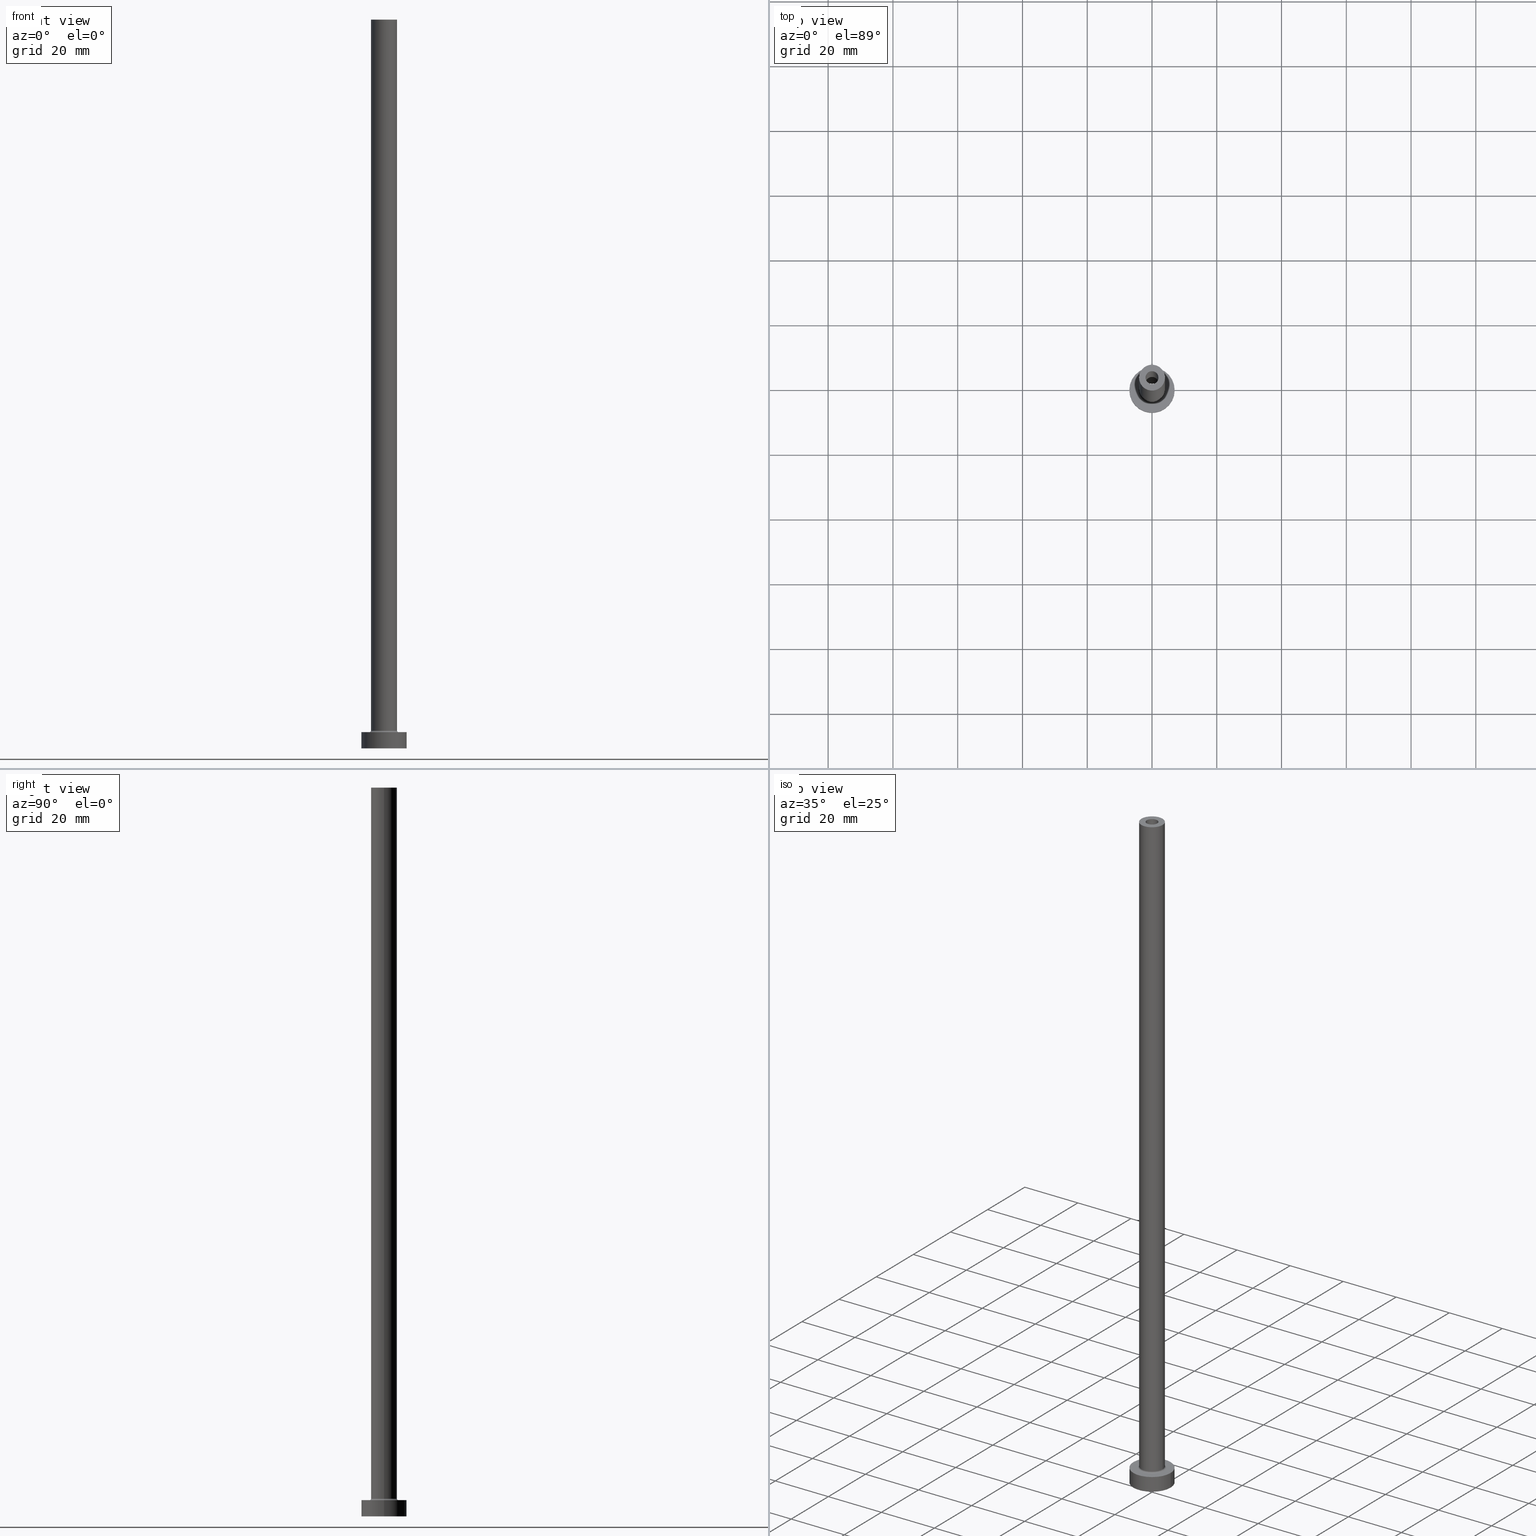
[diagram: canonical four-view strip — front | top / right | iso, engineering-drawing reading convention]
A machine part, canonical four-view strip (front | top / right | iso — engineering-drawing reading convention). The complete STEP part file that produces these views, byte-faithful:
ISO-10303-21;
HEADER;
FILE_DESCRIPTION (( 'STEP AP203' ),
    '1' );
FILE_NAME ('0907.STEP',
    '2023-02-13T17:38:49',
    ( '' ),
    ( '' ),
    'SwSTEP 2.0',
    'SolidWorks 2019',
    '' );
FILE_SCHEMA (( 'CONFIG_CONTROL_DESIGN' ));
ENDSEC;

DATA;
#1 = ORIENTED_EDGE ( 'NONE', *, *, #409, .F. ) ;
#2 = DIRECTION ( 'NONE',  ( 0.000000000000000000, 0.000000000000000000, 1.000000000000000000 ) ) ;
#3 = CARTESIAN_POINT ( 'NONE',  ( 4.500000000000000888, 0.000000000000000000, 5.500000000000005329 ) ) ;
#4 = AXIS2_PLACEMENT_3D ( 'NONE', #392, #72, #426 ) ;
#5 = DIRECTION ( 'NONE',  ( 1.000000000000000000, 0.000000000000000000, 0.000000000000000000 ) ) ;
#6 = CARTESIAN_POINT ( 'NONE',  ( 0.000000000000000000, 0.000000000000000000, 0.000000000000000000 ) ) ;
#7 = ORIENTED_EDGE ( 'NONE', *, *, #417, .F. ) ;
#8 = CARTESIAN_POINT ( 'NONE',  ( -2.149999999999999911, 0.000000000000000000, 180.0000000000000000 ) ) ;
#9 =( LENGTH_UNIT ( ) NAMED_UNIT ( * ) SI_UNIT ( .MILLI., .METRE. ) );
#10 = DIRECTION ( 'NONE',  ( 0.000000000000000000, 0.000000000000000000, 1.000000000000000000 ) ) ;
#11 = ADVANCED_FACE ( 'NONE', ( #149 ), #333, .T. ) ;
#12 = CARTESIAN_POINT ( 'NONE',  ( 0.000000000000000000, 0.000000000000000000, 225.0000000000000000 ) ) ;
#13 = AXIS2_PLACEMENT_3D ( 'NONE', #30, #33, #140 ) ;
#14 = APPROVAL ( #55, 'NEUR�EN�' ) ;
#15 = CARTESIAN_POINT ( 'NONE',  ( 7.000000000000000000, 8.572527594031473190E-16, 5.000000000000000000 ) ) ;
#16 = ORIENTED_EDGE ( 'NONE', *, *, #336, .T. ) ;
#17 = DIRECTION ( 'NONE',  ( 1.000000000000000000, 0.000000000000000000, 0.000000000000000000 ) ) ;
#18 = VERTEX_POINT ( 'NONE', #301 ) ;
#19 = CC_DESIGN_APPROVAL ( #54, ( #183 ) ) ;
#20 = CARTESIAN_POINT ( 'NONE',  ( -4.000000000000000000, 0.000000000000000000, 225.0000000000000000 ) ) ;
#21 = APPROVAL_STATUS ( 'not_yet_approved' ) ;
#22 = DIRECTION ( 'NONE',  ( -1.000000000000000000, 0.000000000000000000, 0.000000000000000000 ) ) ;
#23 = CARTESIAN_POINT ( 'NONE',  ( 2.149999999999999911, 2.632990618166809235E-16, 0.000000000000000000 ) ) ;
#24 = ORIENTED_EDGE ( 'NONE', *, *, #26, .F. ) ;
#25 = PERSON_AND_ORGANIZATION ( #52, #109 ) ;
#26 = EDGE_CURVE ( 'NONE', #243, #264, #311, .T. ) ;
#27 = DATE_AND_TIME ( #123, #147 ) ;
#28 = CC_DESIGN_PERSON_AND_ORGANIZATION_ASSIGNMENT ( #309, #446, ( #183 ) ) ;
#29 = AXIS2_PLACEMENT_3D ( 'NONE', #213, #456, #22 ) ;
#30 = CARTESIAN_POINT ( 'NONE',  ( 0.000000000000000000, 0.000000000000000000, 186.0811183182042896 ) ) ;
#31 = ORIENTED_EDGE ( 'NONE', *, *, #155, .F. ) ;
#32 = DIRECTION ( 'NONE',  ( -1.000000000000000000, 0.000000000000000000, 0.000000000000000000 ) ) ;
#33 = DIRECTION ( 'NONE',  ( 0.000000000000000000, 0.000000000000000000, -1.000000000000000000 ) ) ;
#34 = AXIS2_PLACEMENT_3D ( 'NONE', #150, #396, #357 ) ;
#35 = EDGE_LOOP ( 'NONE', ( #85, #418, #173, #180 ) ) ;
#36 = DIRECTION ( 'NONE',  ( 0.000000000000000000, 0.000000000000000000, -1.000000000000000000 ) ) ;
#37 = DIRECTION ( 'NONE',  ( 0.000000000000000000, 0.000000000000000000, -1.000000000000000000 ) ) ;
#38 = DIRECTION ( 'NONE',  ( 0.000000000000000000, 0.000000000000000000, 1.000000000000000000 ) ) ;
#39 = ORIENTED_EDGE ( 'NONE', *, *, #454, .T. ) ;
#40 = CARTESIAN_POINT ( 'NONE',  ( -4.500000000000000888, 5.510910596163088569E-16, 5.000000000000002665 ) ) ;
#41 = AXIS2_PLACEMENT_3D ( 'NONE', #133, #276, #435 ) ;
#42 = DIRECTION ( 'NONE',  ( 0.000000000000000000, 0.000000000000000000, 1.000000000000000000 ) ) ;
#43 = EDGE_CURVE ( 'NONE', #308, #359, #364, .T. ) ;
#44 = DIRECTION ( 'NONE',  ( -0.000000000000000000, -0.000000000000000000, -1.000000000000000000 ) ) ;
#45 = FACE_BOUND ( 'NONE', #337, .T. ) ;
#46 = CARTESIAN_POINT ( 'NONE',  ( 0.000000000000000000, 0.000000000000000000, 5.000000000000000000 ) ) ;
#47 = LINE ( 'NONE', #429, #355 ) ;
#48 = CIRCLE ( 'NONE', #34, 7.000000000000000000 ) ;
#49 = ORIENTED_EDGE ( 'NONE', *, *, #106, .T. ) ;
#50 = DIRECTION ( 'NONE',  ( -0.000000000000000000, -0.000000000000000000, -1.000000000000000000 ) ) ;
#51 = DIRECTION ( 'NONE',  ( 1.000000000000000000, 0.000000000000000000, 0.000000000000000000 ) ) ;
#52 = PERSON ( 'NEUR�EN�', 'NEUR�EN�', 'NEUR�EN�', ('NEUR�EN�'), ('NEUR�EN�'), ('NEUR�EN�') ) ;
#53 = ORIENTED_EDGE ( 'NONE', *, *, #190, .F. ) ;
#54 = APPROVAL ( #97, 'NEUR�EN�' ) ;
#55 = APPROVAL_STATUS ( 'not_yet_approved' ) ;
#56 = CARTESIAN_POINT ( 'NONE',  ( 4.000000000000000000, 4.898587196589412829E-16, 225.0000000000000000 ) ) ;
#57 = EDGE_LOOP ( 'NONE', ( #75, #137 ) ) ;
#58 = SECURITY_CLASSIFICATION_LEVEL ( 'unclassified' ) ;
#59 = VECTOR ( 'NONE', #37, 1000.000000000000000 ) ;
#60 = APPROVAL_PERSON_ORGANIZATION ( #372, #14, #416 ) ;
#61 = CARTESIAN_POINT ( 'NONE',  ( 0.000000000000000000, 0.000000000000000000, 0.000000000000000000 ) ) ;
#62 = ADVANCED_FACE ( 'NONE', ( #397, #335 ), #125, .F. ) ;
#63 = APPROVAL_ROLE ( '' ) ;
#64 = DIRECTION ( 'NONE',  ( -1.000000000000000000, 0.000000000000000000, 0.000000000000000000 ) ) ;
#65 = DIRECTION ( 'NONE',  ( 0.000000000000000000, 0.000000000000000000, 1.000000000000000000 ) ) ;
#66 = AXIS2_PLACEMENT_3D ( 'NONE', #406, #90, #127 ) ;
#67 = EDGE_LOOP ( 'NONE', ( #460, #191, #138, #135 ) ) ;
#68 = PRODUCT_DEFINITION ( 'NEZN�M�', '', #367, #461 ) ;
#69 = ORIENTED_EDGE ( 'NONE', *, *, #260, .T. ) ;
#70 = CARTESIAN_POINT ( 'NONE',  ( -2.000000000000000000, 0.000000000000000000, 225.0000000000000000 ) ) ;
#71 = ORIENTED_EDGE ( 'NONE', *, *, #160, .F. ) ;
#72 = DIRECTION ( 'NONE',  ( 0.000000000000000000, 0.000000000000000000, 1.000000000000000000 ) ) ;
#73 = AXIS2_PLACEMENT_3D ( 'NONE', #349, #412, #64 ) ;
#74 = EDGE_CURVE ( 'NONE', #264, #243, #146, .T. ) ;
#75 = ORIENTED_EDGE ( 'NONE', *, *, #454, .F. ) ;
#76 = EDGE_CURVE ( 'NONE', #91, #371, #302, .T. ) ;
#77 = EDGE_LOOP ( 'NONE', ( #7, #280 ) ) ;
#78 = DIRECTION ( 'NONE',  ( 1.000000000000000000, 0.000000000000000000, 0.000000000000000000 ) ) ;
#79 = DIRECTION ( 'NONE',  ( 0.000000000000000000, 0.000000000000000000, 1.000000000000000000 ) ) ;
#80 = EDGE_CURVE ( 'NONE', #354, #162, #420, .T. ) ;
#81 = CARTESIAN_POINT ( 'NONE',  ( 0.000000000000000000, 0.000000000000000000, 225.0000000000000000 ) ) ;
#82 = DIRECTION ( 'NONE',  ( 1.000000000000000000, 0.000000000000000000, 0.000000000000000000 ) ) ;
#83 = ORIENTED_EDGE ( 'NONE', *, *, #324, .T. ) ;
#84 = CARTESIAN_POINT ( 'NONE',  ( 7.000000000000000000, 8.572527594031473190E-16, 0.000000000000000000 ) ) ;
#85 = ORIENTED_EDGE ( 'NONE', *, *, #190, .T. ) ;
#86 = PLANE ( 'NONE',  #252 ) ;
#87 = FACE_OUTER_BOUND ( 'NONE', #314, .T. ) ;
#88 = ORIENTED_EDGE ( 'NONE', *, *, #76, .F. ) ;
#89 = CC_DESIGN_APPROVAL ( #277, ( #367 ) ) ;
#90 = DIRECTION ( 'NONE',  ( 0.000000000000000000, 0.000000000000000000, 1.000000000000000000 ) ) ;
#91 = VERTEX_POINT ( 'NONE', #222 ) ;
#92 = DIRECTION ( 'NONE',  ( 1.000000000000000000, 0.000000000000000000, 0.000000000000000000 ) ) ;
#93 = COORDINATED_UNIVERSAL_TIME_OFFSET ( 1, 0, .AHEAD. ) ;
#94 = ADVANCED_FACE ( 'NONE', ( #437, #87 ), #120, .T. ) ;
#95 = EDGE_CURVE ( 'NONE', #91, #215, #157, .T. ) ;
#96 = ORIENTED_EDGE ( 'NONE', *, *, #402, .F. ) ;
#97 = APPROVAL_STATUS ( 'not_yet_approved' ) ;
#98 = FACE_BOUND ( 'NONE', #166, .T. ) ;
#99 = VECTOR ( 'NONE', #118, 1000.000000000000000 ) ;
#100 = LINE ( 'NONE', #287, #210 ) ;
#101 = CARTESIAN_POINT ( 'NONE',  ( 0.000000000000000000, 0.000000000000000000, 0.000000000000000000 ) ) ;
#102 = AXIS2_PLACEMENT_3D ( 'NONE', #404, #79, #151 ) ;
#103 = CIRCLE ( 'NONE', #119, 7.000000000000000000 ) ;
#104 = DIRECTION ( 'NONE',  ( 1.000000000000000000, 0.000000000000000000, 0.000000000000000000 ) ) ;
#105 = ORIENTED_EDGE ( 'NONE', *, *, #76, .T. ) ;
#106 = EDGE_CURVE ( 'NONE', #371, #380, #300, .T. ) ;
#107 = CARTESIAN_POINT ( 'NONE',  ( 0.000000000000000000, 0.000000000000000000, 180.0000000000000000 ) ) ;
#108 = CARTESIAN_POINT ( 'NONE',  ( 0.000000000000000000, 0.000000000000000000, 225.0000000000000000 ) ) ;
#109 = ORGANIZATION ( 'NEUR�EN�', 'NEUR�EN�', '' ) ;
#110 = ORIENTED_EDGE ( 'NONE', *, *, #292, .F. ) ;
#111 = DIRECTION ( 'NONE',  ( 0.000000000000000000, 0.000000000000000000, 1.000000000000000000 ) ) ;
#112 = EDGE_CURVE ( 'NONE', #451, #354, #196, .T. ) ;
#113 = DIRECTION ( 'NONE',  ( -0.000000000000000000, -0.000000000000000000, -1.000000000000000000 ) ) ;
#114 = CARTESIAN_POINT ( 'NONE',  ( 2.149999999999999911, 2.632990618166809235E-16, 186.0811183182042896 ) ) ;
#115 = AXIS2_PLACEMENT_3D ( 'NONE', #81, #289, #430 ) ;
#116 = DIRECTION ( 'NONE',  ( -0.000000000000000000, -0.000000000000000000, -1.000000000000000000 ) ) ;
#117 = ORIENTED_EDGE ( 'NONE', *, *, #74, .T. ) ;
#118 = DIRECTION ( 'NONE',  ( 0.000000000000000000, 0.000000000000000000, -1.000000000000000000 ) ) ;
#119 = AXIS2_PLACEMENT_3D ( 'NONE', #449, #2, #200 ) ;
#120 = PLANE ( 'NONE',  #189 ) ;
#121 = ORIENTED_EDGE ( 'NONE', *, *, #341, .T. ) ;
#122 = EDGE_CURVE ( 'NONE', #425, #451, #455, .T. ) ;
#123 = CALENDAR_DATE ( 2023, 13, 2 ) ;
#124 = VECTOR ( 'NONE', #186, 1000.000000000000000 ) ;
#125 = PLANE ( 'NONE',  #374 ) ;
#126 = TOROIDAL_SURFACE ( 'NONE', #340, 4.500000000000000888, 0.5000000000000000000 ) ;
#127 = DIRECTION ( 'NONE',  ( 1.000000000000000000, 0.000000000000000000, 0.000000000000000000 ) ) ;
#128 = ORIENTED_EDGE ( 'NONE', *, *, #106, .F. ) ;
#129 = CALENDAR_DATE ( 2023, 13, 2 ) ;
#130 = EDGE_CURVE ( 'NONE', #371, #91, #48, .T. ) ;
#131 = CLOSED_SHELL ( 'NONE', ( #139, #259, #365, #11, #373, #342, #438, #389, #286, #94, #227, #310, #62, #245 ) ) ;
#132 = PERSON_AND_ORGANIZATION ( #52, #109 ) ;
#133 = CARTESIAN_POINT ( 'NONE',  ( 0.000000000000000000, 0.000000000000000000, 0.000000000000000000 ) ) ;
#134 = AXIS2_PLACEMENT_3D ( 'NONE', #108, #253, #315 ) ;
#135 = ORIENTED_EDGE ( 'NONE', *, *, #292, .T. ) ;
#136 = CC_DESIGN_PERSON_AND_ORGANIZATION_ASSIGNMENT ( #132, #346, ( #367 ) ) ;
#137 = ORIENTED_EDGE ( 'NONE', *, *, #423, .F. ) ;
#138 = ORIENTED_EDGE ( 'NONE', *, *, #160, .T. ) ;
#139 = ADVANCED_FACE ( 'NONE', ( #225 ), #321, .F. ) ;
#140 = DIRECTION ( 'NONE',  ( -1.000000000000000000, 0.000000000000000000, 0.000000000000000000 ) ) ;
#141 = ORIENTED_EDGE ( 'NONE', *, *, #95, .T. ) ;
#142 = CARTESIAN_POINT ( 'NONE',  ( -2.149999999999999911, 0.000000000000000000, 0.000000000000000000 ) ) ;
#143 = CC_DESIGN_PERSON_AND_ORGANIZATION_ASSIGNMENT ( #25, #307, ( #68 ) ) ;
#144 = VERTEX_POINT ( 'NONE', #40 ) ;
#145 = CARTESIAN_POINT ( 'NONE',  ( 2.000000000000000000, 2.449293598294706414E-16, 225.0000000000000000 ) ) ;
#146 = CIRCLE ( 'NONE', #405, 2.149999999999999911 ) ;
#147 = LOCAL_TIME ( 18, 38, 49.00000000000000000, #348 ) ;
#148 = DIRECTION ( 'NONE',  ( 0.000000000000000000, 0.000000000000000000, 1.000000000000000000 ) ) ;
#149 = FACE_OUTER_BOUND ( 'NONE', #263, .T. ) ;
#150 = CARTESIAN_POINT ( 'NONE',  ( 0.000000000000000000, 0.000000000000000000, 5.000000000000000000 ) ) ;
#151 = DIRECTION ( 'NONE',  ( 1.000000000000000000, 0.000000000000000000, 0.000000000000000000 ) ) ;
#152 = DIRECTION ( 'NONE',  ( 1.000000000000000000, 0.000000000000000000, 0.000000000000000000 ) ) ;
#153 = AXIS2_PLACEMENT_3D ( 'NONE', #453, #248, #458 ) ;
#154 = AXIS2_PLACEMENT_3D ( 'NONE', #235, #164, #383 ) ;
#155 = EDGE_CURVE ( 'NONE', #18, #243, #431, .T. ) ;
#156 = ORIENTED_EDGE ( 'NONE', *, *, #43, .F. ) ;
#157 = LINE ( 'NONE', #15, #124 ) ;
#158 = ORIENTED_EDGE ( 'NONE', *, *, #176, .T. ) ;
#159 =( NAMED_UNIT ( * ) SI_UNIT ( $, .STERADIAN. ) SOLID_ANGLE_UNIT ( ) );
#160 = EDGE_CURVE ( 'NONE', #425, #162, #47, .T. ) ;
#161 = AXIS2_PLACEMENT_3D ( 'NONE', #107, #111, #5 ) ;
#162 = VERTEX_POINT ( 'NONE', #179 ) ;
#163 = MECHANICAL_CONTEXT ( 'NONE', #293, 'mechanical' ) ;
#164 = DIRECTION ( 'NONE',  ( -0.000000000000000000, -0.000000000000000000, -1.000000000000000000 ) ) ;
#165 = MANIFOLD_SOLID_BREP ( 'Odebrat vysunut�m4', #131 ) ;
#166 = EDGE_LOOP ( 'NONE', ( #407, #24 ) ) ;
#167 = COORDINATED_UNIVERSAL_TIME_OFFSET ( 1, 0, .AHEAD. ) ;
#168 = CARTESIAN_POINT ( 'NONE',  ( -7.000000000000000000, 0.000000000000000000, 0.000000000000000000 ) ) ;
#169 = FACE_OUTER_BOUND ( 'NONE', #282, .T. ) ;
#170 = ORIENTED_EDGE ( 'NONE', *, *, #130, .T. ) ;
#171 = PERSON_AND_ORGANIZATION ( #52, #109 ) ;
#172 = PLANE ( 'NONE',  #41 ) ;
#173 = ORIENTED_EDGE ( 'NONE', *, *, #26, .T. ) ;
#174 = CIRCLE ( 'NONE', #273, 2.000000000000000000 ) ;
#175 = EDGE_CURVE ( 'NONE', #162, #144, #267, .T. ) ;
#176 = EDGE_CURVE ( 'NONE', #354, #343, #444, .T. ) ;
#177 = AXIS2_PLACEMENT_3D ( 'NONE', #185, #44, #291 ) ;
#178 = EDGE_LOOP ( 'NONE', ( #202, #204, #345, #156 ) ) ;
#179 = CARTESIAN_POINT ( 'NONE',  ( -4.000000000000000000, 0.000000000000000000, 5.500000000000005329 ) ) ;
#180 = ORIENTED_EDGE ( 'NONE', *, *, #260, .F. ) ;
#181 = DIRECTION ( 'NONE',  ( 1.000000000000000000, 0.000000000000000000, -0.000000000000000000 ) ) ;
#182 = AXIS2_PLACEMENT_3D ( 'NONE', #184, #399, #188 ) ;
#183 = SECURITY_CLASSIFICATION ( '', '', #58 ) ;
#184 = CARTESIAN_POINT ( 'NONE',  ( -4.500000000000000888, 5.510910596163089556E-16, 5.500000000000005329 ) ) ;
#185 = CARTESIAN_POINT ( 'NONE',  ( 0.000000000000000000, 0.000000000000000000, 5.000000000000000000 ) ) ;
#186 = DIRECTION ( 'NONE',  ( -0.000000000000000000, -0.000000000000000000, -1.000000000000000000 ) ) ;
#187 = DIRECTION ( 'NONE',  ( -0.000000000000000000, -0.000000000000000000, -1.000000000000000000 ) ) ;
#188 = DIRECTION ( 'NONE',  ( -1.000000000000000000, 1.224646799147351482E-16, 0.000000000000000000 ) ) ;
#189 = AXIS2_PLACEMENT_3D ( 'NONE', #331, #42, #366 ) ;
#190 = EDGE_CURVE ( 'NONE', #352, #18, #421, .T. ) ;
#191 = ORIENTED_EDGE ( 'NONE', *, *, #122, .F. ) ;
#192 = DIRECTION ( 'NONE',  ( 0.000000000000000000, 0.000000000000000000, -1.000000000000000000 ) ) ;
#193 = CIRCLE ( 'NONE', #134, 2.000000000000000000 ) ;
#194 = ORIENTED_EDGE ( 'NONE', *, *, #409, .T. ) ;
#195 = CC_DESIGN_PERSON_AND_ORGANIZATION_ASSIGNMENT ( #237, #376, ( #367 ) ) ;
#196 = LINE ( 'NONE', #56, #382 ) ;
#197 = ORIENTED_EDGE ( 'NONE', *, *, #214, .F. ) ;
#198 = PERSON_AND_ORGANIZATION_ROLE ( 'design_owner' ) ;
#199 = DATE_AND_TIME ( #304, #436 ) ;
#200 = DIRECTION ( 'NONE',  ( 1.000000000000000000, 0.000000000000000000, 0.000000000000000000 ) ) ;
#201 = CIRCLE ( 'NONE', #298, 4.500000000000000888 ) ;
#202 = ORIENTED_EDGE ( 'NONE', *, *, #417, .T. ) ;
#203 = FACE_OUTER_BOUND ( 'NONE', #35, .T. ) ;
#204 = ORIENTED_EDGE ( 'NONE', *, *, #214, .T. ) ;
#205 = DATE_TIME_ROLE ( 'creation_date' ) ;
#206 = VERTEX_POINT ( 'NONE', #319 ) ;
#207 = APPROVAL_ROLE ( '' ) ;
#208 = FACE_OUTER_BOUND ( 'NONE', #419, .T. ) ;
#209 = CARTESIAN_POINT ( 'NONE',  ( 0.000000000000000000, 0.000000000000000000, 5.000000000000000000 ) ) ;
#210 = VECTOR ( 'NONE', #216, 1000.000000000000000 ) ;
#211 = CARTESIAN_POINT ( 'NONE',  ( 0.000000000000000000, 0.000000000000000000, 180.0000000000000000 ) ) ;
#212 = VERTEX_POINT ( 'NONE', #294 ) ;
#213 = CARTESIAN_POINT ( 'NONE',  ( 0.000000000000000000, 0.000000000000000000, 186.0811183182042896 ) ) ;
#214 = EDGE_CURVE ( 'NONE', #206, #212, #433, .T. ) ;
#215 = VERTEX_POINT ( 'NONE', #84 ) ;
#216 = DIRECTION ( 'NONE',  ( 0.000000000000000000, 0.000000000000000000, -1.000000000000000000 ) ) ;
#217 = DIRECTION ( 'NONE',  ( 1.000000000000000000, 0.000000000000000000, 0.000000000000000000 ) ) ;
#218 = AXIS2_PLACEMENT_3D ( 'NONE', #219, #246, #32 ) ;
#219 = CARTESIAN_POINT ( 'NONE',  ( 0.000000000000000000, 0.000000000000000000, 225.0000000000000000 ) ) ;
#220 = DIRECTION ( 'NONE',  ( 0.000000000000000000, 0.000000000000000000, -1.000000000000000000 ) ) ;
#221 = FACE_OUTER_BOUND ( 'NONE', #67, .T. ) ;
#222 = CARTESIAN_POINT ( 'NONE',  ( 7.000000000000000000, 8.572527594031473190E-16, 5.000000000000000000 ) ) ;
#223 = AXIS2_PLACEMENT_3D ( 'NONE', #327, #10, #152 ) ;
#224 = ORIENTED_EDGE ( 'NONE', *, *, #112, .T. ) ;
#225 = FACE_OUTER_BOUND ( 'NONE', #178, .T. ) ;
#226 = FACE_OUTER_BOUND ( 'NONE', #330, .T. ) ;
#227 = ADVANCED_FACE ( 'NONE', ( #312 ), #413, .F. ) ;
#228 = CARTESIAN_POINT ( 'NONE',  ( 0.000000000000000000, 0.000000000000000000, 0.000000000000000000 ) ) ;
#229 = ORIENTED_EDGE ( 'NONE', *, *, #278, .F. ) ;
#230 = EDGE_LOOP ( 'NONE', ( #53, #229 ) ) ;
#231 = CC_DESIGN_APPROVAL ( #14, ( #68 ) ) ;
#232 = SHAPE_DEFINITION_REPRESENTATION ( #283, #238 ) ;
#233 = CARTESIAN_POINT ( 'NONE',  ( 0.000000000000000000, 0.000000000000000000, 5.000000000000000000 ) ) ;
#234 = DIRECTION ( 'NONE',  ( 1.000000000000000000, 0.000000000000000000, 0.000000000000000000 ) ) ;
#235 = CARTESIAN_POINT ( 'NONE',  ( 0.000000000000000000, 0.000000000000000000, 225.0000000000000000 ) ) ;
#236 = ORIENTED_EDGE ( 'NONE', *, *, #175, .F. ) ;
#237 = PERSON_AND_ORGANIZATION ( #52, #109 ) ;
#238 = ADVANCED_BREP_SHAPE_REPRESENTATION ( '0907', ( #165, #313 ), #427 ) ;
#239 = LOCAL_TIME ( 18, 38, 49.00000000000000000, #445 ) ;
#240 = PERSON_AND_ORGANIZATION ( #52, #109 ) ;
#241 = EDGE_CURVE ( 'NONE', #343, #144, #201, .T. ) ;
#242 = COORDINATED_UNIVERSAL_TIME_OFFSET ( 1, 0, .AHEAD. ) ;
#243 = VERTEX_POINT ( 'NONE', #23 ) ;
#244 = ORIENTED_EDGE ( 'NONE', *, *, #175, .T. ) ;
#245 = ADVANCED_FACE ( 'NONE', ( #169 ), #272, .F. ) ;
#246 = DIRECTION ( 'NONE',  ( 0.000000000000000000, 0.000000000000000000, -1.000000000000000000 ) ) ;
#247 = FACE_OUTER_BOUND ( 'NONE', #317, .T. ) ;
#248 = DIRECTION ( 'NONE',  ( 0.000000000000000000, 0.000000000000000000, 1.000000000000000000 ) ) ;
#249 = ORIENTED_EDGE ( 'NONE', *, *, #176, .F. ) ;
#250 = APPLICATION_CONTEXT ( 'configuration controlled 3d designs of mechanical parts and assemblies' ) ;
#251 = AXIS2_PLACEMENT_3D ( 'NONE', #257, #358, #78 ) ;
#252 = AXIS2_PLACEMENT_3D ( 'NONE', #441, #394, #428 ) ;
#253 = DIRECTION ( 'NONE',  ( 0.000000000000000000, 0.000000000000000000, 1.000000000000000000 ) ) ;
#254 = DIRECTION ( 'NONE',  ( -0.000000000000000000, -0.000000000000000000, -1.000000000000000000 ) ) ;
#255 = CARTESIAN_POINT ( 'NONE',  ( -2.000000000000000000, 0.000000000000000000, 180.0000000000000000 ) ) ;
#256 = PRODUCT ( '0907', '0907', '', ( #163 ) ) ;
#257 = CARTESIAN_POINT ( 'NONE',  ( 0.000000000000000000, 0.000000000000000000, 225.0000000000000000 ) ) ;
#258 = DIRECTION ( 'NONE',  ( 1.000000000000000000, 0.000000000000000000, 0.000000000000000000 ) ) ;
#259 = ADVANCED_FACE ( 'NONE', ( #203 ), #386, .F. ) ;
#260 = EDGE_CURVE ( 'NONE', #352, #264, #100, .T. ) ;
#261 = AXIS2_PLACEMENT_3D ( 'NONE', #61, #323, #368 ) ;
#262 = DIRECTION ( 'NONE',  ( 0.000000000000000000, -1.000000000000000000, 0.000000000000000000 ) ) ;
#263 = EDGE_LOOP ( 'NONE', ( #96, #224, #303, #71 ) ) ;
#264 = VERTEX_POINT ( 'NONE', #142 ) ;
#265 = APPROVAL_DATE_TIME ( #27, #54 ) ;
#266 = CARTESIAN_POINT ( 'NONE',  ( 0.000000000000000000, 0.000000000000000000, 180.0000000000000000 ) ) ;
#267 = CIRCLE ( 'NONE', #182, 0.5000000000000004441 ) ;
#268 = ORIENTED_EDGE ( 'NONE', *, *, #130, .F. ) ;
#269 = CALENDAR_DATE ( 2023, 13, 2 ) ;
#270 = DATE_AND_TIME ( #344, #385 ) ;
#271 = DATE_TIME_ROLE ( 'classification_date' ) ;
#272 = CYLINDRICAL_SURFACE ( 'NONE', #218, 2.000000000000000000 ) ;
#273 = AXIS2_PLACEMENT_3D ( 'NONE', #211, #285, #104 ) ;
#274 = EDGE_LOOP ( 'NONE', ( #236, #395, #158, #1 ) ) ;
#275 = APPROVAL_DATE_TIME ( #199, #14 ) ;
#276 = DIRECTION ( 'NONE',  ( 0.000000000000000000, 0.000000000000000000, 1.000000000000000000 ) ) ;
#277 = APPROVAL ( #21, 'NEUR�EN�' ) ;
#278 = EDGE_CURVE ( 'NONE', #18, #352, #356, .T. ) ;
#279 = VECTOR ( 'NONE', #192, 1000.000000000000000 ) ;
#280 = ORIENTED_EDGE ( 'NONE', *, *, #341, .F. ) ;
#281 = CC_DESIGN_SECURITY_CLASSIFICATION ( #183, ( #367 ) ) ;
#282 = EDGE_LOOP ( 'NONE', ( #197, #121, #442, #375 ) ) ;
#283 = PRODUCT_DEFINITION_SHAPE ( 'NONE', 'NONE',  #68 ) ;
#284 = UNCERTAINTY_MEASURE_WITH_UNIT (LENGTH_MEASURE( 1.000000000000000082E-05 ), #9, 'distance_accuracy_value', 'NONE');
#285 = DIRECTION ( 'NONE',  ( 0.000000000000000000, 0.000000000000000000, 1.000000000000000000 ) ) ;
#286 = ADVANCED_FACE ( 'NONE', ( #221 ), #361, .T. ) ;
#287 = CARTESIAN_POINT ( 'NONE',  ( -2.149999999999999911, 0.000000000000000000, 186.0811183182042896 ) ) ;
#288 = CC_DESIGN_DATE_AND_TIME_ASSIGNMENT ( #381, #271, ( #183 ) ) ;
#289 = DIRECTION ( 'NONE',  ( -0.000000000000000000, -0.000000000000000000, -1.000000000000000000 ) ) ;
#290 = CARTESIAN_POINT ( 'NONE',  ( 0.000000000000000000, 0.000000000000000000, 225.0000000000000000 ) ) ;
#291 = DIRECTION ( 'NONE',  ( -1.000000000000000000, 0.000000000000000000, 0.000000000000000000 ) ) ;
#292 = EDGE_CURVE ( 'NONE', #162, #354, #408, .T. ) ;
#293 = APPLICATION_CONTEXT ( 'configuration controlled 3d designs of mechanical parts and assemblies' ) ;
#294 = CARTESIAN_POINT ( 'NONE',  ( 2.000000000000000000, 2.449293598294706414E-16, 180.0000000000000000 ) ) ;
#295 = CARTESIAN_POINT ( 'NONE',  ( 4.000000000000000000, 4.898587196589412829E-16, 5.500000000000005329 ) ) ;
#296 = FACE_OUTER_BOUND ( 'NONE', #369, .T. ) ;
#297 = CARTESIAN_POINT ( 'NONE',  ( -2.000000000000000000, 0.000000000000000000, 225.0000000000000000 ) ) ;
#298 = AXIS2_PLACEMENT_3D ( 'NONE', #209, #424, #217 ) ;
#299 = ORIENTED_EDGE ( 'NONE', *, *, #423, .T. ) ;
#300 = LINE ( 'NONE', #326, #338 ) ;
#301 = CARTESIAN_POINT ( 'NONE',  ( 2.149999999999999911, 2.632990618166809235E-16, 180.0000000000000000 ) ) ;
#302 = CIRCLE ( 'NONE', #390, 7.000000000000000000 ) ;
#303 = ORIENTED_EDGE ( 'NONE', *, *, #80, .T. ) ;
#304 = CALENDAR_DATE ( 2023, 13, 2 ) ;
#305 = AXIS2_PLACEMENT_3D ( 'NONE', #3, #262, #36 ) ;
#306 = CIRCLE ( 'NONE', #414, 4.500000000000000888 ) ;
#307 = PERSON_AND_ORGANIZATION_ROLE ( 'creator' ) ;
#308 = VERTEX_POINT ( 'NONE', #70 ) ;
#309 = PERSON_AND_ORGANIZATION ( #52, #109 ) ;
#310 = ADVANCED_FACE ( 'NONE', ( #353 ), #318, .F. ) ;
#311 = CIRCLE ( 'NONE', #391, 2.149999999999999911 ) ;
#312 = FACE_OUTER_BOUND ( 'NONE', #274, .T. ) ;
#313 = AXIS2_PLACEMENT_3D ( 'NONE', #101, #65, #234 ) ;
#314 = EDGE_LOOP ( 'NONE', ( #439, #351 ) ) ;
#315 = DIRECTION ( 'NONE',  ( 1.000000000000000000, 0.000000000000000000, 0.000000000000000000 ) ) ;
#316 = CIRCLE ( 'NONE', #4, 2.000000000000000000 ) ;
#317 = EDGE_LOOP ( 'NONE', ( #377, #268, #49, #39 ) ) ;
#318 = CYLINDRICAL_SURFACE ( 'NONE', #13, 2.149999999999999911 ) ;
#319 = CARTESIAN_POINT ( 'NONE',  ( 2.000000000000000000, 2.449293598294706414E-16, 225.0000000000000000 ) ) ;
#320 = CC_DESIGN_PERSON_AND_ORGANIZATION_ASSIGNMENT ( #240, #198, ( #256 ) ) ;
#321 = CYLINDRICAL_SURFACE ( 'NONE', #384, 2.000000000000000000 ) ;
#322 = CIRCLE ( 'NONE', #66, 4.000000000000000000 ) ;
#323 = DIRECTION ( 'NONE',  ( 0.000000000000000000, 0.000000000000000000, 1.000000000000000000 ) ) ;
#324 = EDGE_CURVE ( 'NONE', #212, #359, #174, .T. ) ;
#325 = CARTESIAN_POINT ( 'NONE',  ( 0.000000000000000000, 0.000000000000000000, 5.500000000000005329 ) ) ;
#326 = CARTESIAN_POINT ( 'NONE',  ( -7.000000000000000000, 0.000000000000000000, 5.000000000000000000 ) ) ;
#327 = CARTESIAN_POINT ( 'NONE',  ( 0.000000000000000000, 0.000000000000000000, 180.0000000000000000 ) ) ;
#328 = ORIENTED_EDGE ( 'NONE', *, *, #241, .F. ) ;
#329 = PRODUCT_RELATED_PRODUCT_CATEGORY ( 'detail', '', ( #256 ) ) ;
#330 = EDGE_LOOP ( 'NONE', ( #110, #244, #328, #249 ) ) ;
#331 = CARTESIAN_POINT ( 'NONE',  ( 0.000000000000000000, 0.000000000000000000, 225.0000000000000000 ) ) ;
#332 = AXIS2_PLACEMENT_3D ( 'NONE', #12, #415, #51 ) ;
#333 = CYLINDRICAL_SURFACE ( 'NONE', #115, 4.000000000000000000 ) ;
#334 = ORIENTED_EDGE ( 'NONE', *, *, #278, .T. ) ;
#335 = FACE_OUTER_BOUND ( 'NONE', #230, .T. ) ;
#336 = EDGE_CURVE ( 'NONE', #359, #212, #316, .T. ) ;
#337 = EDGE_LOOP ( 'NONE', ( #403, #194 ) ) ;
#338 = VECTOR ( 'NONE', #50, 1000.000000000000000 ) ;
#339 =( NAMED_UNIT ( * ) PLANE_ANGLE_UNIT ( ) SI_UNIT ( $, .RADIAN. ) );
#340 = AXIS2_PLACEMENT_3D ( 'NONE', #325, #432, #258 ) ;
#341 = EDGE_CURVE ( 'NONE', #206, #308, #193, .T. ) ;
#342 = ADVANCED_FACE ( 'NONE', ( #247 ), #387, .T. ) ;
#343 = VERTEX_POINT ( 'NONE', #400 ) ;
#344 = CALENDAR_DATE ( 2023, 13, 2 ) ;
#345 = ORIENTED_EDGE ( 'NONE', *, *, #336, .F. ) ;
#346 = PERSON_AND_ORGANIZATION_ROLE ( 'creator' ) ;
#347 = FACE_OUTER_BOUND ( 'NONE', #57, .T. ) ;
#348 = COORDINATED_UNIVERSAL_TIME_OFFSET ( 1, 0, .AHEAD. ) ;
#349 = CARTESIAN_POINT ( 'NONE',  ( 0.000000000000000000, 0.000000000000000000, 5.000000000000000000 ) ) ;
#350 = APPROVAL_PERSON_ORGANIZATION ( #171, #54, #207 ) ;
#351 = ORIENTED_EDGE ( 'NONE', *, *, #402, .T. ) ;
#352 = VERTEX_POINT ( 'NONE', #8 ) ;
#353 = FACE_OUTER_BOUND ( 'NONE', #398, .T. ) ;
#354 = VERTEX_POINT ( 'NONE', #295 ) ;
#355 = VECTOR ( 'NONE', #187, 1000.000000000000000 ) ;
#356 = CIRCLE ( 'NONE', #161, 2.149999999999999911 ) ;
#357 = DIRECTION ( 'NONE',  ( 1.000000000000000000, 0.000000000000000000, 0.000000000000000000 ) ) ;
#358 = DIRECTION ( 'NONE',  ( 0.000000000000000000, 0.000000000000000000, 1.000000000000000000 ) ) ;
#359 = VERTEX_POINT ( 'NONE', #255 ) ;
#360 = APPROVAL_PERSON_ORGANIZATION ( #378, #277, #63 ) ;
#361 = CYLINDRICAL_SURFACE ( 'NONE', #154, 4.000000000000000000 ) ;
#362 = DIRECTION ( 'NONE',  ( 1.000000000000000000, 0.000000000000000000, 0.000000000000000000 ) ) ;
#363 = DIRECTION ( 'NONE',  ( -1.000000000000000000, 0.000000000000000000, 0.000000000000000000 ) ) ;
#364 = LINE ( 'NONE', #297, #279 ) ;
#365 = ADVANCED_FACE ( 'NONE', ( #226 ), #126, .F. ) ;
#366 = DIRECTION ( 'NONE',  ( 1.000000000000000000, 0.000000000000000000, -0.000000000000000000 ) ) ;
#367 = PRODUCT_DEFINITION_FORMATION_WITH_SPECIFIED_SOURCE ( 'LIBOVOLN�', '', #256, .NOT_KNOWN. ) ;
#368 = DIRECTION ( 'NONE',  ( 1.000000000000000000, 0.000000000000000000, 0.000000000000000000 ) ) ;
#369 = EDGE_LOOP ( 'NONE', ( #170, #105 ) ) ;
#370 = DIRECTION ( 'NONE',  ( -0.000000000000000000, -0.000000000000000000, -1.000000000000000000 ) ) ;
#371 = VERTEX_POINT ( 'NONE', #434 ) ;
#372 = PERSON_AND_ORGANIZATION ( #52, #109 ) ;
#373 = ADVANCED_FACE ( 'NONE', ( #208 ), #379, .T. ) ;
#374 = AXIS2_PLACEMENT_3D ( 'NONE', #266, #38, #181 ) ;
#375 = ORIENTED_EDGE ( 'NONE', *, *, #324, .F. ) ;
#376 = PERSON_AND_ORGANIZATION_ROLE ( 'design_supplier' ) ;
#377 = ORIENTED_EDGE ( 'NONE', *, *, #95, .F. ) ;
#378 = PERSON_AND_ORGANIZATION ( #52, #109 ) ;
#379 = CYLINDRICAL_SURFACE ( 'NONE', #73, 7.000000000000000000 ) ;
#380 = VERTEX_POINT ( 'NONE', #168 ) ;
#381 = DATE_AND_TIME ( #129, #422 ) ;
#382 = VECTOR ( 'NONE', #254, 1000.000000000000000 ) ;
#383 = DIRECTION ( 'NONE',  ( -1.000000000000000000, 0.000000000000000000, 0.000000000000000000 ) ) ;
#384 = AXIS2_PLACEMENT_3D ( 'NONE', #290, #220, #363 ) ;
#385 = LOCAL_TIME ( 18, 38, 49.00000000000000000, #167 ) ;
#386 = CYLINDRICAL_SURFACE ( 'NONE', #29, 2.149999999999999911 ) ;
#387 = CYLINDRICAL_SURFACE ( 'NONE', #177, 7.000000000000000000 ) ;
#388 = DIRECTION ( 'NONE',  ( 0.000000000000000000, 0.000000000000000000, 1.000000000000000000 ) ) ;
#389 = ADVANCED_FACE ( 'NONE', ( #98, #347 ), #172, .F. ) ;
#390 = AXIS2_PLACEMENT_3D ( 'NONE', #46, #148, #362 ) ;
#391 = AXIS2_PLACEMENT_3D ( 'NONE', #228, #116, #92 ) ;
#392 = CARTESIAN_POINT ( 'NONE',  ( 0.000000000000000000, 0.000000000000000000, 180.0000000000000000 ) ) ;
#393 = AXIS2_PLACEMENT_3D ( 'NONE', #457, #388, #452 ) ;
#394 = DIRECTION ( 'NONE',  ( 0.000000000000000000, 0.000000000000000000, 1.000000000000000000 ) ) ;
#395 = ORIENTED_EDGE ( 'NONE', *, *, #80, .F. ) ;
#396 = DIRECTION ( 'NONE',  ( 0.000000000000000000, 0.000000000000000000, 1.000000000000000000 ) ) ;
#397 = FACE_BOUND ( 'NONE', #447, .T. ) ;
#398 = EDGE_LOOP ( 'NONE', ( #31, #334, #69, #117 ) ) ;
#399 = DIRECTION ( 'NONE',  ( 1.224646799147353207E-16, 1.000000000000000000, -0.000000000000000000 ) ) ;
#400 = CARTESIAN_POINT ( 'NONE',  ( 4.500000000000000888, 0.000000000000000000, 5.000000000000002665 ) ) ;
#401 = CIRCLE ( 'NONE', #332, 2.000000000000000000 ) ;
#402 = EDGE_CURVE ( 'NONE', #451, #425, #322, .T. ) ;
#403 = ORIENTED_EDGE ( 'NONE', *, *, #241, .T. ) ;
#404 = CARTESIAN_POINT ( 'NONE',  ( 0.000000000000000000, 0.000000000000000000, 5.500000000000005329 ) ) ;
#405 = AXIS2_PLACEMENT_3D ( 'NONE', #6, #113, #17 ) ;
#406 = CARTESIAN_POINT ( 'NONE',  ( 0.000000000000000000, 0.000000000000000000, 225.0000000000000000 ) ) ;
#407 = ORIENTED_EDGE ( 'NONE', *, *, #74, .F. ) ;
#408 = CIRCLE ( 'NONE', #393, 4.000000000000000000 ) ;
#409 = EDGE_CURVE ( 'NONE', #144, #343, #306, .T. ) ;
#410 = APPROVAL_DATE_TIME ( #270, #277 ) ;
#411 = APPLICATION_PROTOCOL_DEFINITION ( 'international standard', 'config_control_design', 1994, #250 ) ;
#412 = DIRECTION ( 'NONE',  ( -0.000000000000000000, -0.000000000000000000, -1.000000000000000000 ) ) ;
#413 = TOROIDAL_SURFACE ( 'NONE', #153, 4.500000000000000888, 0.5000000000000000000 ) ;
#414 = AXIS2_PLACEMENT_3D ( 'NONE', #233, #370, #82 ) ;
#415 = DIRECTION ( 'NONE',  ( 0.000000000000000000, 0.000000000000000000, 1.000000000000000000 ) ) ;
#416 = APPROVAL_ROLE ( '' ) ;
#417 = EDGE_CURVE ( 'NONE', #308, #206, #401, .T. ) ;
#418 = ORIENTED_EDGE ( 'NONE', *, *, #155, .T. ) ;
#419 = EDGE_LOOP ( 'NONE', ( #88, #141, #299, #128 ) ) ;
#420 = CIRCLE ( 'NONE', #102, 4.000000000000000000 ) ;
#421 = CIRCLE ( 'NONE', #223, 2.149999999999999911 ) ;
#422 = LOCAL_TIME ( 18, 38, 49.00000000000000000, #242 ) ;
#423 = EDGE_CURVE ( 'NONE', #215, #380, #103, .T. ) ;
#424 = DIRECTION ( 'NONE',  ( -0.000000000000000000, -0.000000000000000000, -1.000000000000000000 ) ) ;
#425 = VERTEX_POINT ( 'NONE', #20 ) ;
#426 = DIRECTION ( 'NONE',  ( 1.000000000000000000, 0.000000000000000000, 0.000000000000000000 ) ) ;
#427 =( GEOMETRIC_REPRESENTATION_CONTEXT ( 3 ) GLOBAL_UNCERTAINTY_ASSIGNED_CONTEXT ( ( #284 ) ) GLOBAL_UNIT_ASSIGNED_CONTEXT ( ( #9, #339, #159 ) ) REPRESENTATION_CONTEXT ( 'NONE', 'WORKASPACE' ) );
#428 = DIRECTION ( 'NONE',  ( 1.000000000000000000, 0.000000000000000000, -0.000000000000000000 ) ) ;
#429 = CARTESIAN_POINT ( 'NONE',  ( -4.000000000000000000, 0.000000000000000000, 225.0000000000000000 ) ) ;
#430 = DIRECTION ( 'NONE',  ( -1.000000000000000000, 0.000000000000000000, 0.000000000000000000 ) ) ;
#431 = LINE ( 'NONE', #114, #59 ) ;
#432 = DIRECTION ( 'NONE',  ( 0.000000000000000000, 0.000000000000000000, 1.000000000000000000 ) ) ;
#433 = LINE ( 'NONE', #145, #99 ) ;
#434 = CARTESIAN_POINT ( 'NONE',  ( -7.000000000000000000, 0.000000000000000000, 5.000000000000000000 ) ) ;
#435 = DIRECTION ( 'NONE',  ( 1.000000000000000000, 0.000000000000000000, -0.000000000000000000 ) ) ;
#436 = LOCAL_TIME ( 18, 38, 49.00000000000000000, #93 ) ;
#437 = FACE_BOUND ( 'NONE', #77, .T. ) ;
#438 = ADVANCED_FACE ( 'NONE', ( #45, #296 ), #86, .T. ) ;
#439 = ORIENTED_EDGE ( 'NONE', *, *, #122, .T. ) ;
#440 = CC_DESIGN_DATE_AND_TIME_ASSIGNMENT ( #443, #205, ( #68 ) ) ;
#441 = CARTESIAN_POINT ( 'NONE',  ( 0.000000000000000000, 0.000000000000000000, 5.000000000000000000 ) ) ;
#442 = ORIENTED_EDGE ( 'NONE', *, *, #43, .T. ) ;
#443 = DATE_AND_TIME ( #269, #239 ) ;
#444 = CIRCLE ( 'NONE', #305, 0.5000000000000004441 ) ;
#445 = COORDINATED_UNIVERSAL_TIME_OFFSET ( 1, 0, .AHEAD. ) ;
#446 = PERSON_AND_ORGANIZATION_ROLE ( 'classification_officer' ) ;
#447 = EDGE_LOOP ( 'NONE', ( #16, #83 ) ) ;
#448 = APPLICATION_PROTOCOL_DEFINITION ( 'international standard', 'config_control_design', 1994, #293 ) ;
#449 = CARTESIAN_POINT ( 'NONE',  ( 0.000000000000000000, 0.000000000000000000, 0.000000000000000000 ) ) ;
#450 = CARTESIAN_POINT ( 'NONE',  ( 4.000000000000000000, 4.898587196589412829E-16, 225.0000000000000000 ) ) ;
#451 = VERTEX_POINT ( 'NONE', #450 ) ;
#452 = DIRECTION ( 'NONE',  ( 1.000000000000000000, 0.000000000000000000, 0.000000000000000000 ) ) ;
#453 = CARTESIAN_POINT ( 'NONE',  ( 0.000000000000000000, 0.000000000000000000, 5.500000000000005329 ) ) ;
#454 = EDGE_CURVE ( 'NONE', #380, #215, #459, .T. ) ;
#455 = CIRCLE ( 'NONE', #251, 4.000000000000000000 ) ;
#456 = DIRECTION ( 'NONE',  ( 0.000000000000000000, 0.000000000000000000, -1.000000000000000000 ) ) ;
#457 = CARTESIAN_POINT ( 'NONE',  ( 0.000000000000000000, 0.000000000000000000, 5.500000000000005329 ) ) ;
#458 = DIRECTION ( 'NONE',  ( 1.000000000000000000, 0.000000000000000000, 0.000000000000000000 ) ) ;
#459 = CIRCLE ( 'NONE', #261, 7.000000000000000000 ) ;
#460 = ORIENTED_EDGE ( 'NONE', *, *, #112, .F. ) ;
#461 = DESIGN_CONTEXT ( 'detailed design', #250, 'design' ) ;
ENDSEC;
END-ISO-10303-21;
